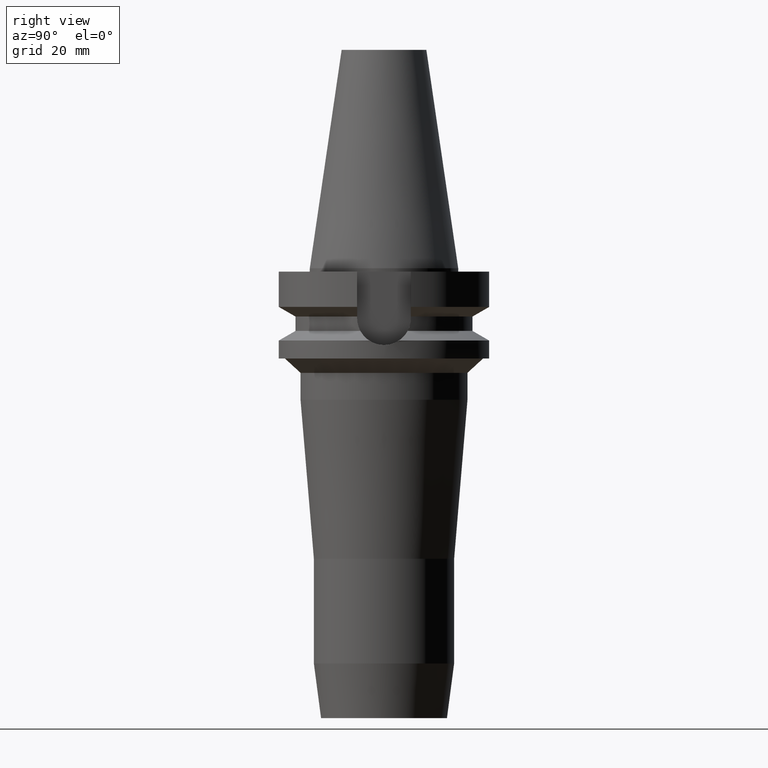
[diagram: clean part render]
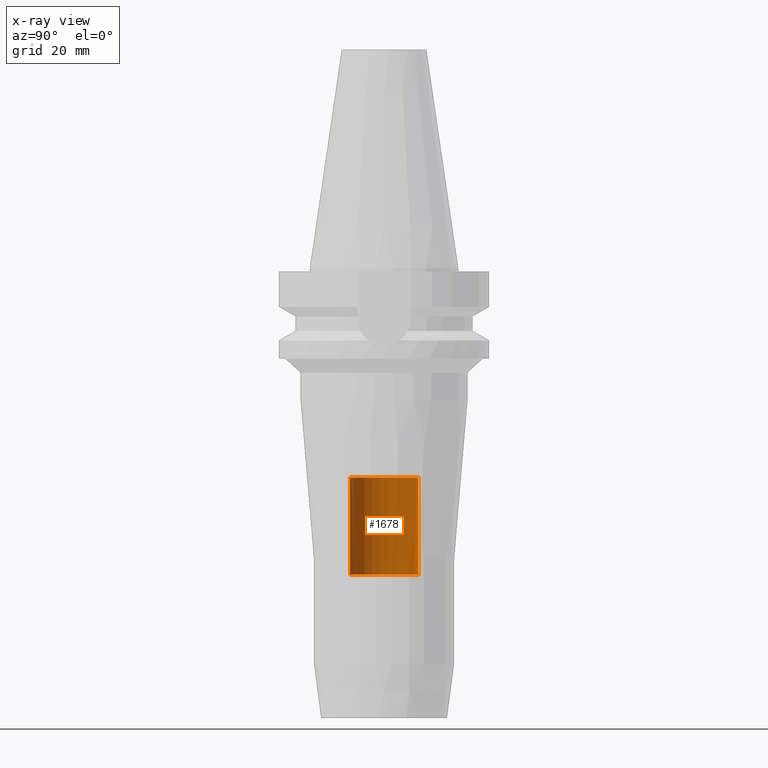
[diagram: x-ray — body ghosted, one internal face saturated and labeled with its STEP entity id]
A machine part, right view, then the same camera in x-ray: the body is ghosted and one INTERNAL B-rep face — a face not visible from any outside direction — is saturated and labeled: STEP entity #1678.
In plain terms, the highlighted cylindrical surface (edge-blend (fillet) strip) has radius 10.25 mm, axis along (0, 0, -1).
Its self-contained STEP definition (entity closure, byte-faithful):
#332=CARTESIAN_POINT('',(0.E0,0.E0,-6.27E1));
#333=DIRECTION('',(0.E0,0.E0,1.E0));
#334=DIRECTION('',(0.E0,1.E0,0.E0));
#335=AXIS2_PLACEMENT_3D('',#332,#333,#334);
#356=DIRECTION('',(0.E0,0.E0,1.E0));
#357=VECTOR('',#356,2.9E1);
#358=CARTESIAN_POINT('',(0.E0,1.025E1,-9.17E1));
#359=LINE('',#358,#357);
#363=DIRECTION('',(0.E0,0.E0,1.E0));
#364=VECTOR('',#363,2.9E1);
#365=CARTESIAN_POINT('',(0.E0,-1.025E1,-9.17E1));
#366=LINE('',#365,#364);
#370=CARTESIAN_POINT('',(0.E0,0.E0,-9.17E1));
#371=DIRECTION('',(0.E0,0.E0,-1.E0));
#372=DIRECTION('',(0.E0,-1.E0,0.E0));
#373=AXIS2_PLACEMENT_3D('',#370,#371,#372);
#1216=CARTESIAN_POINT('',(0.E0,-1.025E1,-6.27E1));
#1217=CARTESIAN_POINT('',(0.E0,1.025E1,-6.27E1));
#1218=VERTEX_POINT('',#1216);
#1219=VERTEX_POINT('',#1217);
#1220=CARTESIAN_POINT('',(0.E0,1.025E1,-9.17E1));
#1221=VERTEX_POINT('',#1220);
#1222=CARTESIAN_POINT('',(0.E0,-1.025E1,-9.17E1));
#1223=VERTEX_POINT('',#1222);
#1666=CARTESIAN_POINT('',(0.E0,0.E0,7.5405E1));
#1667=DIRECTION('',(0.E0,0.E0,-1.E0));
#1668=DIRECTION('',(0.E0,-1.E0,0.E0));
#1669=AXIS2_PLACEMENT_3D('',#1666,#1667,#1668);
#1670=CYLINDRICAL_SURFACE('',#1669,1.025E1);
#1671=ORIENTED_EDGE('',*,*,#1656,.F.);
#1673=ORIENTED_EDGE('',*,*,#1672,.F.);
#1674=ORIENTED_EDGE('',*,*,#1659,.T.);
#1675=ORIENTED_EDGE('',*,*,#1642,.F.);
#1676=EDGE_LOOP('',(#1671,#1673,#1674,#1675));
#1677=FACE_OUTER_BOUND('',#1676,.F.);
#336=CIRCLE('',#335,1.025E1);
#374=CIRCLE('',#373,1.025E1);
#1642=EDGE_CURVE('',#1219,#1218,#336,.T.);
#1656=EDGE_CURVE('',#1221,#1219,#359,.T.);
#1659=EDGE_CURVE('',#1223,#1218,#366,.T.);
#1672=EDGE_CURVE('',#1223,#1221,#374,.T.);
#1678=ADVANCED_FACE('',(#1677),#1670,.F.);